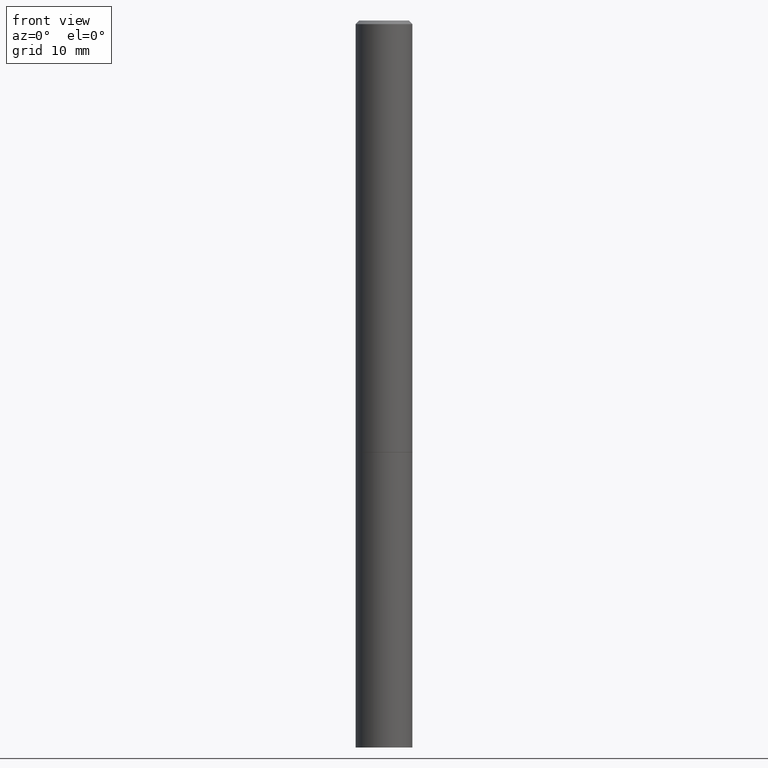
[diagram: clean part render]
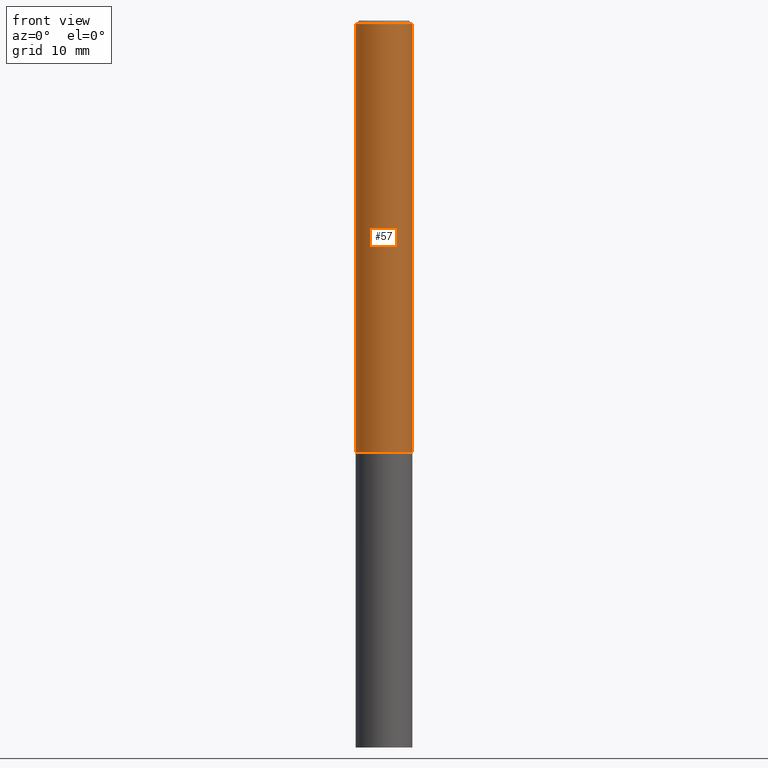
[diagram: same view with one face highlighted and labeled with its STEP entity id]
A machine part, front view. The second image highlights one B-rep face of the part: STEP entity #57.
In plain terms, the highlighted cylindrical surface (edge-blend (fillet) strip) has radius 3.9687 mm, axis along (-0, 0, 1).
Its self-contained STEP definition (entity closure, byte-faithful):
#16 = DIRECTION ( 'NONE',  ( 1.000000000000000000, -6.982962677686266711E-15, 4.876176775795936353E-29 ) ) ;
#24 = VERTEX_POINT ( 'NONE', #372 ) ;
#32 = AXIS2_PLACEMENT_3D ( 'NONE', #104, #108, #278 ) ;
#36 = CARTESIAN_POINT ( 'NONE',  ( -0.1562499999999998612, 1.110223024625155554E-15, -7.685836078523284153E-30 ) ) ;
#53 = CYLINDRICAL_SURFACE ( 'NONE', #288, 0.1562499999999998612 ) ;
#54 = VECTOR ( 'NONE', #290, 39.37007874015748143 ) ;
#57 = ADVANCED_FACE ( 'NONE', ( #265 ), #53, .T. ) ;
#78 = DIRECTION ( 'NONE',  ( -2.445468806185136877E-29, 3.491481338843145188E-15, 1.000000000000000000 ) ) ;
#82 = LINE ( 'NONE', #199, #54 ) ;
#83 = VECTOR ( 'NONE', #78, 39.37007874015748143 ) ;
#88 = ORIENTED_EDGE ( 'NONE', *, *, #270, .T. ) ;
#101 = CARTESIAN_POINT ( 'NONE',  ( 5.805542945883513814E-29, -8.288776698413627111E-15, -2.373999999999999666 ) ) ;
#104 = CARTESIAN_POINT ( 'NONE',  ( 4.890937612370281041E-31, -6.982962677686302702E-17, -0.02000000000000003511 ) ) ;
#108 = DIRECTION ( 'NONE',  ( -2.445468806185136597E-29, 3.491481338843145583E-15, 1.000000000000000000 ) ) ;
#136 = DIRECTION ( 'NONE',  ( -2.445468806185136597E-29, 3.491481338843145583E-15, 1.000000000000000000 ) ) ;
#137 = CIRCLE ( 'NONE', #308, 0.1562500000000000000 ) ;
#190 = EDGE_CURVE ( 'NONE', #384, #269, #82, .T. ) ;
#193 = CARTESIAN_POINT ( 'NONE',  ( 0.1562500000000000000, -9.379864616802105495E-15, -2.373999999999999666 ) ) ;
#199 = CARTESIAN_POINT ( 'NONE',  ( 0.1562499999999998612, -1.091087918388478187E-15, 7.619026212181143371E-30 ) ) ;
#212 = ORIENTED_EDGE ( 'NONE', *, *, #341, .F. ) ;
#223 = CIRCLE ( 'NONE', #32, 0.1562499999999997224 ) ;
#225 = CARTESIAN_POINT ( 'NONE',  ( -0.1562500000000000000, -3.069080137970085114E-15, -2.373999999999999666 ) ) ;
#234 = ORIENTED_EDGE ( 'NONE', *, *, #276, .F. ) ;
#245 = LINE ( 'NONE', #36, #83 ) ;
#250 = DIRECTION ( 'NONE',  ( -2.445468806185136597E-29, 3.491481338843145583E-15, 1.000000000000000000 ) ) ;
#265 = FACE_OUTER_BOUND ( 'NONE', #293, .T. ) ;
#269 = VERTEX_POINT ( 'NONE', #369 ) ;
#270 = EDGE_CURVE ( 'NONE', #327, #384, #137, .T. ) ;
#276 = EDGE_CURVE ( 'NONE', #327, #24, #245, .T. ) ;
#278 = DIRECTION ( 'NONE',  ( 1.000000000000000000, -6.982962677686267499E-15, 0.000000000000000000 ) ) ;
#288 = AXIS2_PLACEMENT_3D ( 'NONE', #337, #136, #16 ) ;
#290 = DIRECTION ( 'NONE',  ( -2.445468806185136877E-29, 3.491481338843145188E-15, 1.000000000000000000 ) ) ;
#293 = EDGE_LOOP ( 'NONE', ( #234, #88, #326, #212 ) ) ;
#308 = AXIS2_PLACEMENT_3D ( 'NONE', #101, #250, #340 ) ;
#326 = ORIENTED_EDGE ( 'NONE', *, *, #190, .T. ) ;
#327 = VERTEX_POINT ( 'NONE', #225 ) ;
#337 = CARTESIAN_POINT ( 'NONE',  ( 0.000000000000000000, 0.000000000000000000, 0.000000000000000000 ) ) ;
#340 = DIRECTION ( 'NONE',  ( 1.000000000000000000, -6.982962677686262766E-15, 0.000000000000000000 ) ) ;
#341 = EDGE_CURVE ( 'NONE', #24, #269, #223, .T. ) ;
#369 = CARTESIAN_POINT ( 'NONE',  ( 0.1562499999999997224, -1.141782438928662935E-15, -0.02000000000000003511 ) ) ;
#372 = CARTESIAN_POINT ( 'NONE',  ( -0.1562499999999997224, 1.021258291611614298E-15, -0.02000000000000003511 ) ) ;
#384 = VERTEX_POINT ( 'NONE', #193 ) ;